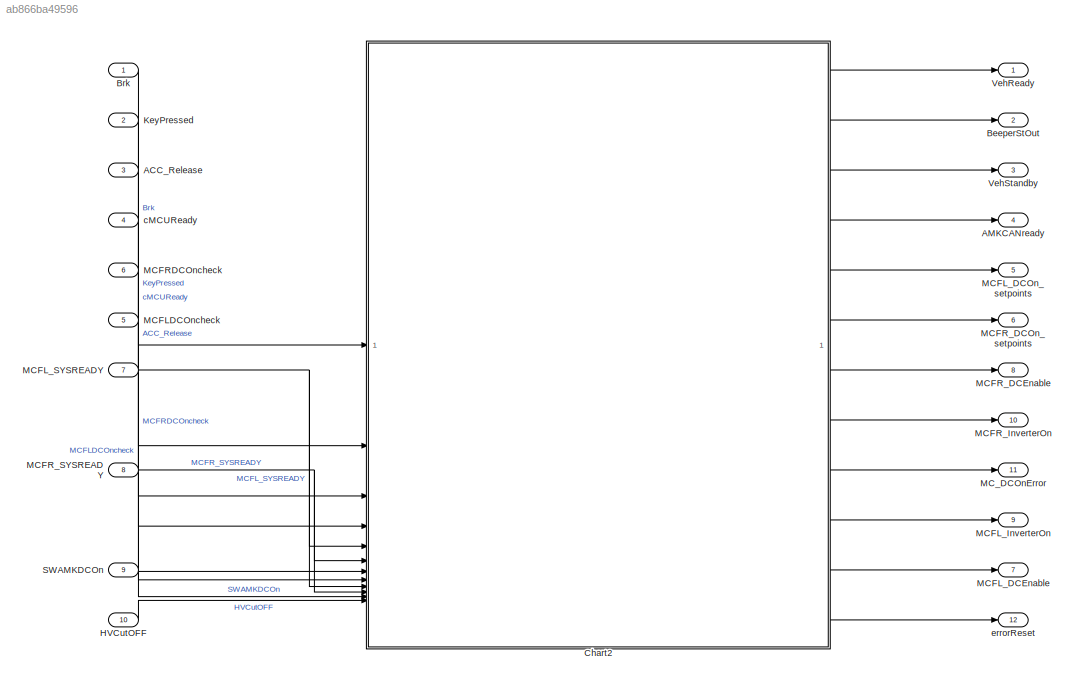
MODEL slx_ab866ba49596
KIND model
CONFIG AbsTol = auto
CONFIG EnableMultiTasking = off
CONFIG FixedStep = 0.01
CONFIG MaxStep = auto
CONFIG MinStep = auto
CONFIG RelTol = 1e-3
CONFIG SampleTimeConstraint = Unconstrained
CONFIG SolverName = FixedStepDiscrete
CONFIG StartTime = 0.0
CONFIG StopTime = 15
BLOCK [Inport] ACC_Release
  Port = 3
BLOCK [Outport] AMKCANready
  Port = 4
BLOCK [Outport] BeeperStOut
  Port = 2
BLOCK [Inport] Brk
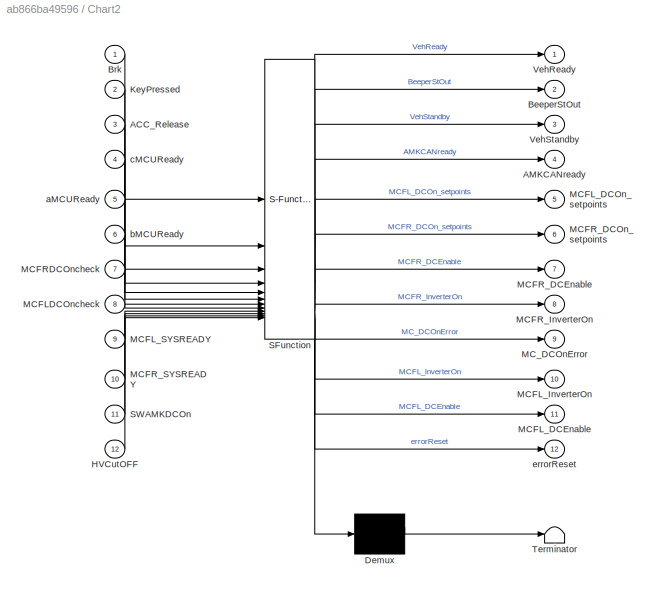
BLOCK [SubSystem] Chart2
  ErrorFcn = Stateflow.Translate.translate
  PermitHierarchicalResolution = ExplicitOnly
  PortSchema = {"entries":[{"content":{"sides":[{"content":{"connectorIds":["In1","In2","In3","In4","In7","In8","In9","In5","In10","In6","In11","In12"]},"type":"ConnectorPlacement.EquallySpacedRectSide","uuid":"b8fe060c-e9bf-4f00-b6f6-68ec1856d310"},{"content":{"connectorIds":["Out1","Out2","Out3","Out4","Out5","Out6","Out7","Out8","Out9","Out10","Out11","Out12"],"side":"RIGHT"},"type":"ConnectorPlacement.Equall...<+389ch>
  SFBlockType = Chart
  TreatAsAtomicUnit = on
BLOCK [Demux] Chart2/ Demux 
  Outputs = 1
BLOCK [S-Function] Chart2/ SFunction 
  EnableBusSupport = on
  FunctionName = sf_sfun
  PortCounts = [12 13]
  SFcnIsStateOwnerBlock = off
  SFunctionDeploymentMode = off
  Tag = Stateflow S-Function 1
BLOCK [Terminator] Chart2/ Terminator 
BLOCK [Inport] Chart2/ACC_Release
  Port = 3
BLOCK [Outport] Chart2/AMKCANready
  Port = 4
BLOCK [Outport] Chart2/BeeperStOut
  Port = 2
  VectorParamsAs1DForOutWhenUnconnected = off
BLOCK [Inport] Chart2/Brk
BLOCK [Inport] Chart2/HVCutOFF
  Port = 12
BLOCK [Inport] Chart2/KeyPressed
  Port = 2
BLOCK [Inport] Chart2/MCFLDCOncheck
  Port = 8
BLOCK [Outport] Chart2/MCFL_DCEnable
  Port = 11
BLOCK [Outport] Chart2/MCFL_DCOn_setpoints
  Port = 5
BLOCK [Outport] Chart2/MCFL_InverterOn
  Port = 10
BLOCK [Inport] Chart2/MCFL_SYSREADY
  Port = 9
BLOCK [Inport] Chart2/MCFRDCOncheck
  Port = 7
BLOCK [Outport] Chart2/MCFR_DCEnable
  Port = 7
BLOCK [Outport] Chart2/MCFR_DCOn_setpoints
  Port = 6
BLOCK [Outport] Chart2/MCFR_InverterOn
  Port = 8
BLOCK [Inport] Chart2/MCFR_SYSREADY
  Port = 10
BLOCK [Outport] Chart2/MC_DCOnError
  Port = 9
BLOCK [Inport] Chart2/SWAMKDCOn
  Port = 11
BLOCK [Outport] Chart2/VehReady
  VectorParamsAs1DForOutWhenUnconnected = off
BLOCK [Outport] Chart2/VehStandby
  Port = 3
  VectorParamsAs1DForOutWhenUnconnected = off
BLOCK [Inport] Chart2/aMCUReady
  Port = 5
BLOCK [Inport] Chart2/bMCUReady
  Port = 6
BLOCK [Inport] Chart2/cMCUReady
  Port = 4
BLOCK [Outport] Chart2/errorReset
  Port = 12
BLOCK [Inport] HVCutOFF
  Port = 10
BLOCK [Inport] KeyPressed
  Port = 2
BLOCK [Inport] MCFLDCOncheck
  Port = 5
BLOCK [Outport] MCFL_DCEnable
  Port = 7
BLOCK [Outport] MCFL_DCOn_setpoints
  Port = 5
BLOCK [Outport] MCFL_InverterOn
  Port = 9
BLOCK [Inport] MCFL_SYSREADY
  Port = 7
BLOCK [Inport] MCFRDCOncheck
  Port = 6
BLOCK [Outport] MCFR_DCEnable
  Port = 8
BLOCK [Outport] MCFR_DCOn_setpoints
  Port = 6
BLOCK [Outport] MCFR_InverterOn
  Port = 10
BLOCK [Inport] MCFR_SYSREADY
  Port = 8
BLOCK [Outport] MC_DCOnError
  Port = 11
BLOCK [Inport] SWAMKDCOn
  Port = 9
BLOCK [Outport] VehReady
BLOCK [Outport] VehStandby
  Port = 3
BLOCK [Inport] cMCUReady
  Port = 4
BLOCK [Outport] errorReset
  Port = 12
LINE ACC_Release:1 -> Chart2:3
LINE Brk:1 -> Chart2:1
LINE Chart2:1 -> VehReady:1
LINE Chart2:10 -> MCFL_InverterOn:1
LINE Chart2:11 -> MCFL_DCEnable:1
LINE Chart2:12 -> errorReset:1
LINE Chart2:2 -> BeeperStOut:1
LINE Chart2:3 -> VehStandby:1
LINE Chart2:4 -> AMKCANready:1
LINE Chart2:5 -> MCFL_DCOn_setpoints:1
LINE Chart2:6 -> MCFR_DCOn_setpoints:1
LINE Chart2:7 -> MCFR_DCEnable:1
LINE Chart2:8 -> MCFR_InverterOn:1
LINE Chart2:9 -> MC_DCOnError:1
LINE HVCutOFF:1 -> Chart2:12
LINE KeyPressed:1 -> Chart2:2
LINE MCFLDCOncheck:1 -> Chart2:8
NET MCFL_SYSREADY:1 -> Chart2:5, Chart2:9
LINE MCFRDCOncheck:1 -> Chart2:7
NET MCFR_SYSREADY:1 -> Chart2:10, Chart2:6
LINE SWAMKDCOn:1 -> Chart2:11
LINE cMCUReady:1 -> Chart2:4
note: NET lines group one-source signal fan-out (src -> all destinations, sorted); 1:1 wires keep LINE
CHART Chart2 states=36 transitions=40
  STATE_LABEL 'VehStat'
  STATE_LABEL 'WaitForEngine\nen:\nsend(AMKCANOFF,AMKCANenable);\nsend(AMKDCOFF,AMKDCon);\nsend(MCDCEnableOFF,MCDCEnable);\nsend(InverterOFF,MC_InverterOn);'
  STATE_LABEL 'Standby'
  STATE_LABEL 'Trans\n'
  STATE_LABEL 'Guard\n'
  STATE_LABEL 'InitStateBack'
  STATE_LABEL 'Ready'
  STATE_LABEL 'Init\nen:\nerrorReset = 1;'
  STATE_LABEL 'MCUReadyFail'
  STATE_LABEL '[aMCUReady&&bMCUReady&&cMCUReady]'
  STATE_LABEL '[KeyPressed&&Brk&&ACC_Release&&cMCUReady&&aMCUReady&&bMCUReady]'
  STATE_LABEL 'after(2.5,sec){send(EbeepOFF,BeeperStat)}'
  STATE_LABEL 'after(0.25,sec){send(EbeepON,BeeperStat)}'
  STATE_LABEL '[~KeyPressed||~Brk||~ACC_Release]'
  STATE_LABEL '[~aMCUReady||~bMCUReady||~cMCUReady]'
  STATE_LABEL '[~cMCUReady||~aMCUReady||~bMCUReady]'
  STATE_LABEL '[after(1,sec)]'
  STATE_LABEL '[~HVCutOFF]'
  STATE_LABEL '[~cMCUReady||~aMCUReady||~bMCUReady]'
  STATE_LABEL 'WaitForEngine\nen:\nsend(AMKCANOFF,AMKCANenable);\nsend(AMKDCOFF,AMKDCon);\nsend(MCDCEnableOFF,MCDCEnable);\nsend(InverterOFF,MC_InverterOn);'
  STATE_LABEL 'Standby'
  STATE_LABEL 'Trans\n'
  STATE_LABEL 'Guard\n'
  STATE_LABEL 'InitStateBack'
  STATE_LABEL 'Ready'
  STATE_LABEL 'Init\nen:\nerrorReset = 1;'
  STATE_LABEL 'MCUReadyFail'
  STATE_LABEL 'BeeperStat'
  STATE_LABEL 'OFF'
  STATE_LABEL 'ON'
  STATE_LABEL 'EbeepON'
  STATE_LABEL 'EbeepOFF'
  STATE_LABEL 'OFF'
  STATE_LABEL 'ON'
  STATE_LABEL 'AMKDCon'
  STATE_LABEL 'OFF'
  STATE_LABEL 'ON'
  STATE_LABEL 'AMKDCON'
  STATE_LABEL 'AMKDCOFF'
  STATE_LABEL 'OFF'
CHART  states=0 transitions=0
